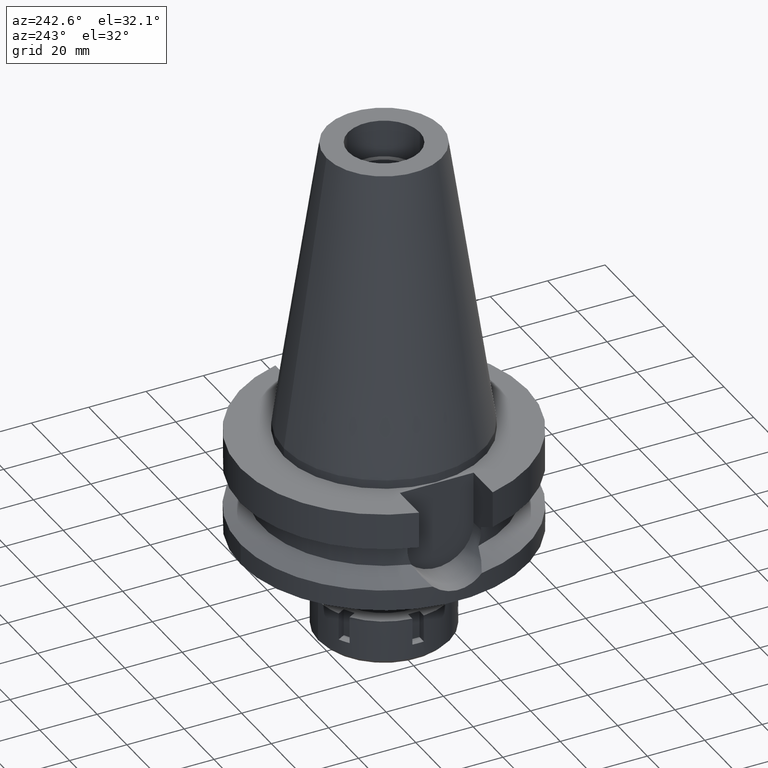
[diagram: clean part render]
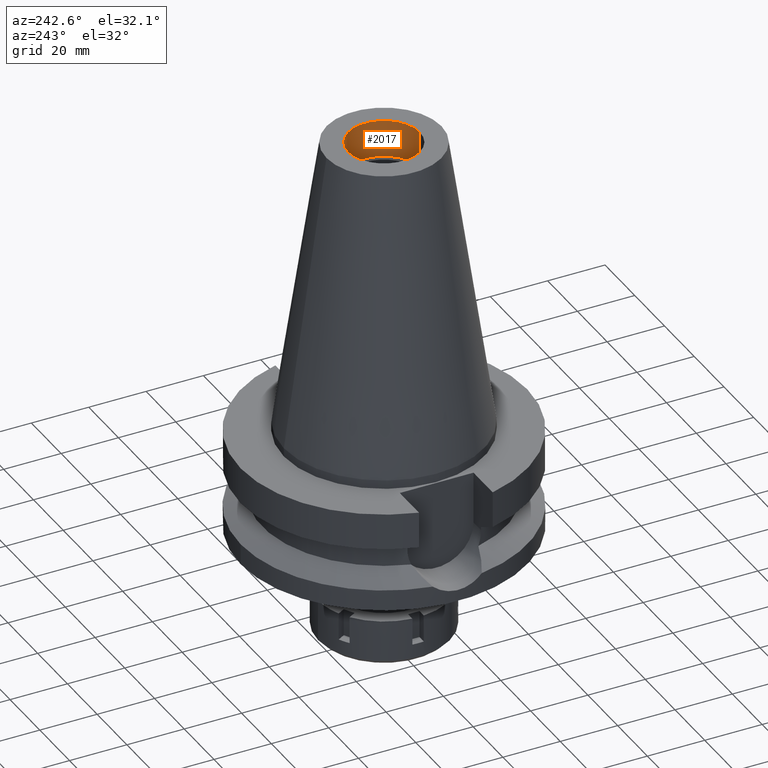
[diagram: same view with one face highlighted and labeled with its STEP entity id]
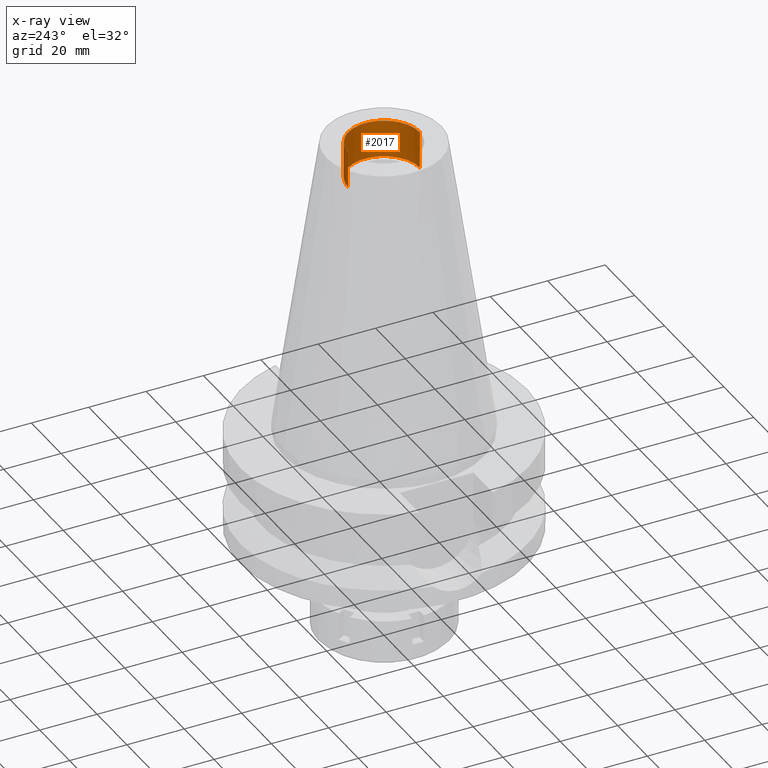
[diagram: x-ray of the same camera — body ghosted, the highlighted face saturated]
A machine part, auxiliary view. The second image highlights one B-rep face of the part: STEP entity #2017.
The next image is the same camera in x-ray: the body ghosted, the highlighted face saturated — about 0% of this face is hidden behind the body in this view.
In plain terms, the highlighted cylindrical surface (partial cylindrical patch) has radius 12.5 mm, axis along (0, 0, -1).
Its self-contained STEP definition (entity closure, byte-faithful):
#5 = CARTESIAN_POINT ( 'NONE',  ( 0.0000000000000000000, 2.574697430526999748E-14, 88.79999999999999716 ) ) ;
#28 = FACE_OUTER_BOUND ( 'NONE', #3255, .T. ) ;
#145 = CIRCLE ( 'NONE', #3082, 12.50000000000000000 ) ;
#257 = DIRECTION ( 'NONE',  ( 0.0000000000000000000, -1.000000000000000000, 0.0000000000000000000 ) ) ;
#259 = ORIENTED_EDGE ( 'NONE', *, *, #1048, .T. ) ;
#270 = VECTOR ( 'NONE', #1690, 1000.000000000000000 ) ;
#344 = CARTESIAN_POINT ( 'NONE',  ( 0.0000000000000000000, 12.50000000000000000, 88.79999999999999716 ) ) ;
#345 = AXIS2_PLACEMENT_3D ( 'NONE', #3388, #902, #2314 ) ;
#885 = CYLINDRICAL_SURFACE ( 'NONE', #345, 12.50000000000000000 ) ;
#897 = CARTESIAN_POINT ( 'NONE',  ( 0.0000000000000000000, -12.50000000000000000, 88.79999999999999716 ) ) ;
#902 = DIRECTION ( 'NONE',  ( 0.0000000000000000000, 0.0000000000000000000, -1.000000000000000000 ) ) ;
#930 = ORIENTED_EDGE ( 'NONE', *, *, #2515, .F. ) ;
#1048 = EDGE_CURVE ( 'NONE', #2657, #2563, #1469, .T. ) ;
#1065 = CARTESIAN_POINT ( 'NONE',  ( 0.0000000000000000000, 2.574697430526999748E-14, 101.7999999999999972 ) ) ;
#1333 = DIRECTION ( 'NONE',  ( 0.0000000000000000000, 0.0000000000000000000, 1.000000000000000000 ) ) ;
#1402 = CARTESIAN_POINT ( 'NONE',  ( 0.0000000000000000000, 12.50000000000000000, 101.7999999999999972 ) ) ;
#1452 = CARTESIAN_POINT ( 'NONE',  ( 0.0000000000000000000, -12.50000000000000000, 88.79999999999999716 ) ) ;
#1469 = LINE ( 'NONE', #1452, #2378 ) ;
#1627 = CIRCLE ( 'NONE', #2209, 12.50000000000000000 ) ;
#1690 = DIRECTION ( 'NONE',  ( 0.0000000000000000000, 0.0000000000000000000, 1.000000000000000000 ) ) ;
#1810 = EDGE_CURVE ( 'NONE', #2563, #2533, #1627, .T. ) ;
#1998 = DIRECTION ( 'NONE',  ( 0.0000000000000000000, 1.000000000000000000, 0.0000000000000000000 ) ) ;
#2017 = ADVANCED_FACE ( 'NONE', ( #28 ), #885, .F. ) ;
#2209 = AXIS2_PLACEMENT_3D ( 'NONE', #1065, #1333, #257 ) ;
#2314 = DIRECTION ( 'NONE',  ( 0.0000000000000000000, -1.000000000000000000, 0.0000000000000000000 ) ) ;
#2378 = VECTOR ( 'NONE', #2567, 1000.000000000000000 ) ;
#2413 = ORIENTED_EDGE ( 'NONE', *, *, #1810, .T. ) ;
#2444 = ORIENTED_EDGE ( 'NONE', *, *, #2578, .T. ) ;
#2515 = EDGE_CURVE ( 'NONE', #2643, #2533, #2869, .T. ) ;
#2533 = VERTEX_POINT ( 'NONE', #1402 ) ;
#2552 = CARTESIAN_POINT ( 'NONE',  ( 0.0000000000000000000, -12.50000000000000000, 101.7999999999999972 ) ) ;
#2563 = VERTEX_POINT ( 'NONE', #2552 ) ;
#2567 = DIRECTION ( 'NONE',  ( 0.0000000000000000000, 0.0000000000000000000, 1.000000000000000000 ) ) ;
#2578 = EDGE_CURVE ( 'NONE', #2643, #2657, #145, .T. ) ;
#2643 = VERTEX_POINT ( 'NONE', #3111 ) ;
#2657 = VERTEX_POINT ( 'NONE', #897 ) ;
#2833 = DIRECTION ( 'NONE',  ( 0.0000000000000000000, 0.0000000000000000000, -1.000000000000000000 ) ) ;
#2869 = LINE ( 'NONE', #344, #270 ) ;
#3082 = AXIS2_PLACEMENT_3D ( 'NONE', #5, #2833, #1998 ) ;
#3111 = CARTESIAN_POINT ( 'NONE',  ( 0.0000000000000000000, 12.50000000000000000, 88.79999999999999716 ) ) ;
#3255 = EDGE_LOOP ( 'NONE', ( #2444, #259, #2413, #930 ) ) ;
#3388 = CARTESIAN_POINT ( 'NONE',  ( 0.0000000000000000000, 2.574697430526999748E-14, 110.2400000000000091 ) ) ;